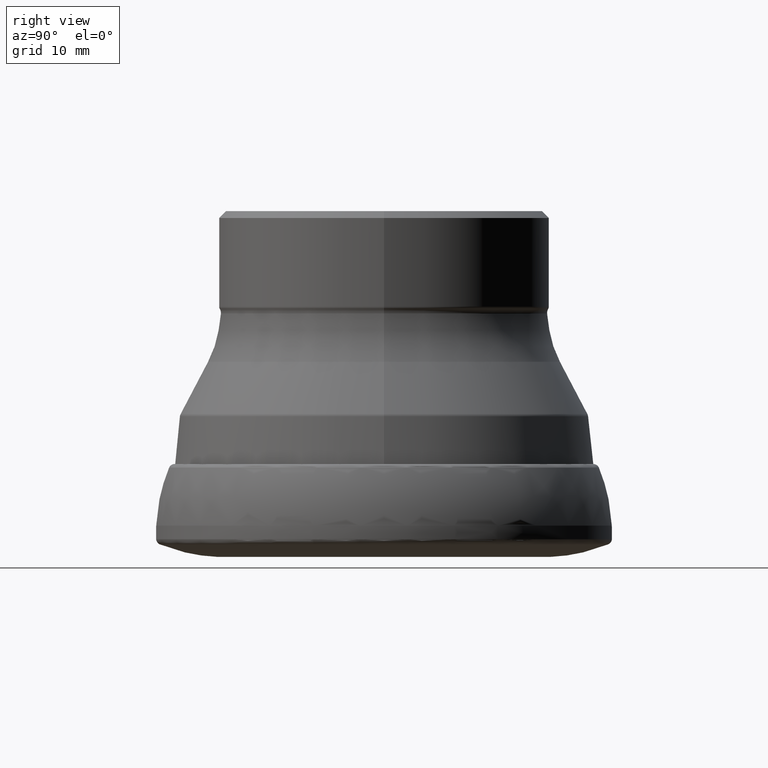
[diagram: clean part render]
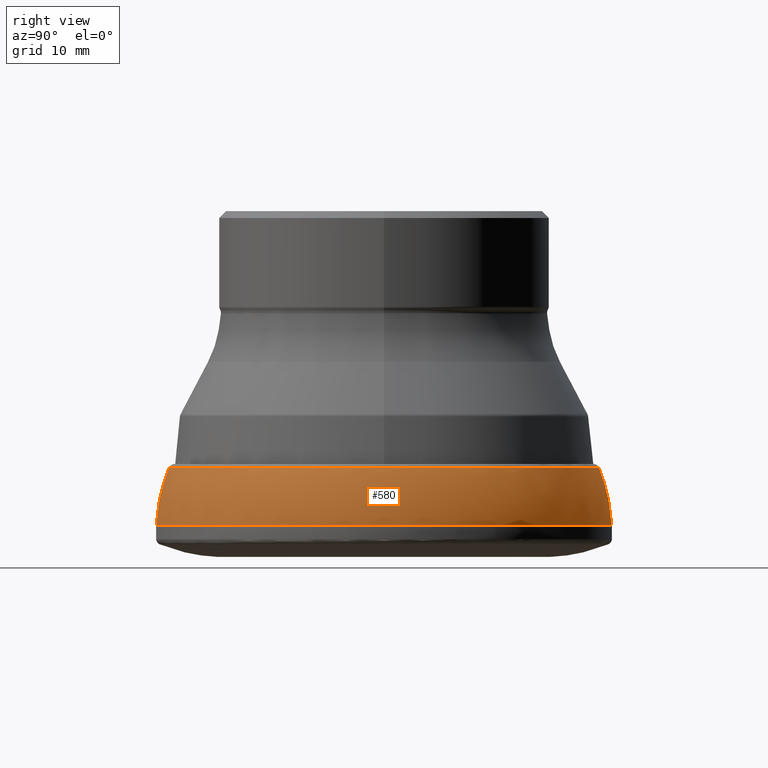
[diagram: same view with one face highlighted and labeled with its STEP entity id]
A machine part, right view. The second image highlights one B-rep face of the part: STEP entity #580.
In plain terms, the highlighted face is a freeform B-spline surface patch.
Its self-contained STEP definition (entity closure, byte-faithful):
#2 = CARTESIAN_POINT ( 'NONE',  ( 64.13808063992819100, 32.06904031996444400, -9.994887390593103000 ) ) ;
#60 = CARTESIAN_POINT ( 'NONE',  ( 63.23133594160331900, 31.61566797080201100, -11.46600991212113400 ) ) ;
#73 = CARTESIAN_POINT ( 'NONE',  ( 0.0000000000000000000, 5.658837121491545700E-016, -4.530690978079938700 ) ) ;
#93 = CARTESIAN_POINT ( 'NONE',  ( -1.452004714371952500E-014, 32.69623945292858700, -7.013094106679998800 ) ) ;
#105 = CARTESIAN_POINT ( 'NONE',  ( 0.0000000000000000000, 31.06900917613264900, -12.91075774162771100 ) ) ;
#165 = CARTESIAN_POINT ( 'NONE',  ( 1.457622643138636500E-014, -32.82274396242976900, -6.017474146927636300 ) ) ;
#170 = CARTESIAN_POINT ( 'NONE',  ( 1.424151477634259400E-014, -32.06904031996399600, -9.994887390593111900 ) ) ;
#183 = CARTESIAN_POINT ( 'NONE',  ( 65.23521819906319800, -32.61760909953135000, -7.511430064667046700 ) ) ;
#190 = CARTESIAN_POINT ( 'NONE',  ( 65.74116253026824100, 32.87058126513447600, -5.520835865264111000 ) ) ;
#195 = CARTESIAN_POINT ( 'NONE',  ( 1.462276884415158700E-014, -32.92754815882295100, -4.690880860172210700 ) ) ;
#213 = CARTESIAN_POINT ( 'NONE',  ( 1.440151516688532500E-014, -32.42932916957762800, -8.507481756901128700 ) ) ;
#221 = CARTESIAN_POINT ( 'NONE',  ( 1.461471617487847500E-014, -32.90941515965409500, -5.012548109519042500 ) ) ;
#331 = ORIENTED_EDGE ( 'NONE', *, *, #2935, .F. ) ;
#336 = CARTESIAN_POINT ( 'NONE',  ( -1.444562346083920000E-014, 32.52865221768494300, -8.009672158062164400 ) ) ;
#353 = CARTESIAN_POINT ( 'NONE',  ( 64.85865833915569600, -32.42932916957759900, -8.507481756901130500 ) ) ;
#380 = CARTESIAN_POINT ( 'NONE',  ( 64.39904340443595700, -32.19952170221773000, -9.500434531964527800 ) ) ;
#424 = CARTESIAN_POINT ( 'NONE',  ( 63.55408432700830400, -31.77704216350390400, -10.97801170486190600 ) ) ;
#436 = CARTESIAN_POINT ( 'NONE',  ( 65.81883031930839000, 32.90941515965455000, -5.012548109519034500 ) ) ;
#439 = CARTESIAN_POINT ( 'NONE',  ( 63.23133594160356100, -31.61566797080153500, -11.46600991212114300 ) ) ;
#452 = CARTESIAN_POINT ( 'NONE',  ( 64.39904340443573000, 32.19952170221820600, -9.500434531964518900 ) ) ;
#461 = CARTESIAN_POINT ( 'NONE',  ( -2.174186379914699000E-013, 31.13558643041600500, -12.74943832982830800 ) ) ;
#465 = CARTESIAN_POINT ( 'NONE',  ( 1.452004714371948700E-014, -32.69623945292852300, -7.013094106680361200 ) ) ;
#519 = CARTESIAN_POINT ( 'NONE',  ( 1.388458228612224500E-014, -31.26529980498754600, -12.42557784014740300 ) ) ;
#546 = CARTESIAN_POINT ( 'NONE',  ( -2.298052178043472000E-013, 32.90941515965409500, -5.012548109519034500 ) ) ;
#566 = CARTESIAN_POINT ( 'NONE',  ( -1.435279487295834800E-014, 32.31962082079020600, -9.004517220139872400 ) ) ;
#580 = ADVANCED_FACE ( 'NONE', ( #896 ), #2572, .F. ) ;
#600 = VERTEX_POINT ( 'NONE', #867 ) ;
#610 = CARTESIAN_POINT ( 'NONE',  ( 1.459747046134564800E-014, -32.87058126513401400, -5.520835865264119000 ) ) ;
#633 = CARTESIAN_POINT ( 'NONE',  ( 65.52914989117381600, 32.76457494558725600, -6.514997885468356600 ) ) ;
#636 = CARTESIAN_POINT ( 'NONE',  ( 1.448512825220910500E-014, -32.61760909953137900, -7.511430064667046700 ) ) ;
#638 = CARTESIAN_POINT ( 'NONE',  ( 1.457622643138636500E-014, -32.82274396242976900, -6.017474146927636300 ) ) ;
#641 = CARTESIAN_POINT ( 'NONE',  ( -2.207710294702284400E-013, 31.61566797080156400, -11.46600991212113400 ) ) ;
#681 = CARTESIAN_POINT ( 'NONE',  ( 65.64548792485975100, 32.82274396243023100, -6.017474146927627400 ) ) ;
#688 = CARTESIAN_POINT ( 'NONE',  ( 0.0000000000000000000, -32.93503732902213700, -4.530690978079942300 ) ) ;
#699 = CARTESIAN_POINT ( 'NONE',  ( 1.382697797610174700E-014, -31.13558643041600100, -12.74943832982831500 ) ) ;
#731 = CARTESIAN_POINT ( 'NONE',  ( 1.424151477634259400E-014, -32.06904031996399600, -9.994887390593111900 ) ) ;
#751 = ORIENTED_EDGE ( 'NONE', *, *, #2069, .F. ) ;
#766 = CARTESIAN_POINT ( 'NONE',  ( 65.85509631764635700, -32.92754815882292300, -4.690880860172209800 ) ) ;
#797 = CARTESIAN_POINT ( 'NONE',  ( -2.229534714165755400E-013, 31.92820607920661400, -10.48753101892197600 ) ) ;
#799 = CARTESIAN_POINT ( 'NONE',  ( -1.424151477634264800E-014, 32.06904031996409500, -9.994887390592671400 ) ) ;
#802 = DIRECTION ( 'NONE',  ( 0.0000000000000000000, 1.000000000000000000, 1.316776612887106200E-016 ) ) ;
#845 = CARTESIAN_POINT ( 'NONE',  ( 63.85641215841367600, -31.92820607920658600, -10.48753101892198600 ) ) ;
#852 = CARTESIAN_POINT ( 'NONE',  ( 62.53059960997552500, -31.26529980498751700, -12.42557784014740500 ) ) ;
#866 = VERTEX_POINT ( 'NONE', #2899 ) ;
#867 = CARTESIAN_POINT ( 'NONE',  ( 0.0000000000000000000, -32.93503732902213700, -4.530690978079942300 ) ) ;
#896 = FACE_OUTER_BOUND ( 'NONE', #1194, .T. ) ;
#923 = CARTESIAN_POINT ( 'NONE',  ( 1.462276884415158700E-014, -32.92754815882295100, -4.690880860172210700 ) ) ;
#934 = CARTESIAN_POINT ( 'NONE',  ( 1.448512825220910500E-014, -32.61760909953137900, -7.511430064667046700 ) ) ;
#1001 = CARTESIAN_POINT ( 'NONE',  ( -2.183244216448997300E-013, 31.26529980498754600, -12.42557784014739400 ) ) ;
#1028 = CARTESIAN_POINT ( 'NONE',  ( -1.411184154576261500E-014, 31.77704216350402100, -10.97801170486153000 ) ) ;
#1077 = CARTESIAN_POINT ( 'NONE',  ( 64.85865833915548300, 32.42932916957808200, -8.507481756901119900 ) ) ;
#1084 = CARTESIAN_POINT ( 'NONE',  ( 64.13808063992843200, -32.06904031996396800, -9.994887390593111900 ) ) ;
#1090 = CARTESIAN_POINT ( 'NONE',  ( 65.64548792486000700, -32.82274396242974000, -6.017474146927635400 ) ) ;
#1106 = CARTESIAN_POINT ( 'NONE',  ( 65.74116253026849700, -32.87058126513398500, -5.520835865264119000 ) ) ;
#1151 = CARTESIAN_POINT ( 'NONE',  ( 1.411184154576260900E-014, -31.77704216350393200, -10.97801170486190600 ) ) ;
#1155 = CARTESIAN_POINT ( 'NONE',  ( 63.55408432700807000, 31.77704216350437600, -10.97801170486189500 ) ) ;
#1159 = CARTESIAN_POINT ( 'NONE',  ( 1.440151516688532500E-014, -32.42932916957762800, -8.507481756901128700 ) ) ;
#1166 = CARTESIAN_POINT ( 'NONE',  ( 1.435279487295831100E-014, -32.31962082079012800, -9.004517220140339600 ) ) ;
#1168 = EDGE_CURVE ( 'NONE', #600, #1436, #2337, .T. ) ;
#1169 = CARTESIAN_POINT ( 'NONE',  ( 1.444562346083918700E-014, -32.52865221768487200, -8.009672158062604900 ) ) ;
#1177 = CARTESIAN_POINT ( 'NONE',  ( 1.382697797610174700E-014, -31.13558643041600100, -12.74943832982831500 ) ) ;
#1194 = EDGE_LOOP ( 'NONE', ( #751, #331, #1502, #1199 ) ) ;
#1199 = ORIENTED_EDGE ( 'NONE', *, *, #1168, .T. ) ;
#1226 = CARTESIAN_POINT ( 'NONE',  ( 64.63924164158046900, 32.31962082079058300, -9.004517220140330700 ) ) ;
#1259 = CARTESIAN_POINT ( 'NONE',  ( -2.169537315096262200E-013, 31.06900917613262400, -12.91075774162778200 ) ) ;
#1260 = CARTESIAN_POINT ( 'NONE',  ( -1.459747046134564200E-014, 32.87058126513404200, -5.520835865263941300 ) ) ;
#1271 = CARTESIAN_POINT ( 'NONE',  ( -1.396390385086546800E-014, 31.44391608969754900, -11.95108305033522100 ) ) ;
#1331 = CARTESIAN_POINT ( 'NONE',  ( 64.63924164158071100, -32.31962082079009900, -9.004517220140339600 ) ) ;
#1340 = CARTESIAN_POINT ( 'NONE',  ( 1.455039419865884200E-014, -32.76457494558680100, -6.514997885468364600 ) ) ;
#1403 = CARTESIAN_POINT ( 'NONE',  ( 1.455039419865884200E-014, -32.76457494558680100, -6.514997885468364600 ) ) ;
#1407 = CARTESIAN_POINT ( 'NONE',  ( 1.388458228612224500E-014, -31.26529980498754600, -12.42557784014740300 ) ) ;
#1413 = CARTESIAN_POINT ( 'NONE',  ( 65.23521819906295600, 32.61760909953183300, -7.511430064667038700 ) ) ;
#1417 = CARTESIAN_POINT ( 'NONE',  ( 1.404017700803520800E-014, -31.61566797080156400, -11.46600991212114100 ) ) ;
#1436 = VERTEX_POINT ( 'NONE', #1907 ) ;
#1477 = CARTESIAN_POINT ( 'NONE',  ( 65.81883031930864500, -32.90941515965406700, -5.012548109519042500 ) ) ;
#1484 = CARTESIAN_POINT ( 'NONE',  ( 65.85509631764610100, 32.92754815882340600, -4.690880860172202700 ) ) ;
#1502 = ORIENTED_EDGE ( 'NONE', *, *, #2141, .T. ) ;
#1505 = CARTESIAN_POINT ( 'NONE',  ( 1.417897180964483400E-014, -31.92820607920661400, -10.48753101892198500 ) ) ;
#1512 = CARTESIAN_POINT ( 'NONE',  ( -1.455039419865880400E-014, 32.76457494558685100, -6.514997885468055500 ) ) ;
#1517 = CARTESIAN_POINT ( 'NONE',  ( -2.287938039952872100E-013, 32.76457494558680100, -6.514997885468356600 ) ) ;
#1521 = CARTESIAN_POINT ( 'NONE',  ( -1.382697797610180100E-014, 31.13558643041605500, -12.74943832982817100 ) ) ;
#1550 = CARTESIAN_POINT ( 'NONE',  ( 62.88783217939533900, -31.44391608969743100, -11.95108305033546600 ) ) ;
#1597 = CARTESIAN_POINT ( 'NONE',  ( -2.256867059485494500E-013, 32.31962082079012800, -9.004517220140330700 ) ) ;
#1626 = CARTESIAN_POINT ( 'NONE',  ( 1.411184154576260900E-014, -31.77704216350393200, -10.97801170486190600 ) ) ;
#1645 = CARTESIAN_POINT ( 'NONE',  ( -2.218978994350108200E-013, 31.77704216350393200, -10.97801170486189700 ) ) ;
#1660 = CARTESIAN_POINT ( 'NONE',  ( 0.0000000000000000000, 32.93503732913985300, -4.530690977926354900 ) ) ;
#1732 = CARTESIAN_POINT ( 'NONE',  ( -1.448512825220911800E-014, 32.61760909953142800, -7.511430064666637200 ) ) ;
#1758 = CARTESIAN_POINT ( 'NONE',  ( 1.396390385086543800E-014, -31.44391608969746000, -11.95108305033546400 ) ) ;
#1763 = CARTESIAN_POINT ( 'NONE',  ( 62.88783217939511900, 31.44391608969789300, -11.95108305033545500 ) ) ;
#1783 = CARTESIAN_POINT ( 'NONE',  ( 0.0000000000000000000, 32.93503732913985300, -4.530690977926354900 ) ) ;
#1789 = CARTESIAN_POINT ( 'NONE',  ( 62.53059960997529000, 31.26529980498797900, -12.42557784014739400 ) ) ;
#1862 = CARTESIAN_POINT ( 'NONE',  ( 1.379741173585305200E-014, -31.06900917613262100, -12.91075774162778900 ) ) ;
#1889 = CARTESIAN_POINT ( 'NONE',  ( 62.13801835226567500, -31.06900917613259600, -12.91075774162778900 ) ) ;
#1907 = CARTESIAN_POINT ( 'NONE',  ( 0.0000000000000000000, -31.06900917612818700, -12.91075774162565400 ) ) ;
#1939 = CARTESIAN_POINT ( 'NONE',  ( 62.13801835226544800, 31.06900917613306100, -12.91075774162778000 ) ) ;
#1953 = CARTESIAN_POINT ( 'NONE',  ( -2.291999960688993400E-013, 32.82274396242976900, -6.017474146927628300 ) ) ;
#1956 = AXIS2_PLACEMENT_3D ( 'NONE', #3005, #2302, #2456 ) ;
#1968 = CARTESIAN_POINT ( 'NONE',  ( -2.239369116635246000E-013, 32.06904031996399600, -9.994887390593103000 ) ) ;
#1971 = CARTESIAN_POINT ( 'NONE',  ( -1.440151516688536300E-014, 32.42932916957771300, -8.507481756900674000 ) ) ;
#1990 = CARTESIAN_POINT ( 'NONE',  ( 65.05730443537018500, -32.52865221768484400, -8.009672158062604900 ) ) ;
#1993 = CARTESIAN_POINT ( 'NONE',  ( 65.39247890585726000, 32.69623945292897800, -7.013094106680352300 ) ) ;
#2056 = CARTESIAN_POINT ( 'NONE',  ( 62.27117286083220200, 31.13558643041643800, -12.74943832982830800 ) ) ;
#2069 = EDGE_CURVE ( 'NONE', #866, #1436, #2553, .T. ) ;
#2079 = AXIS2_PLACEMENT_3D ( 'NONE', #73, #2961, #802 ) ;
#2082 = CARTESIAN_POINT ( 'NONE',  ( 1.429946015028782800E-014, -32.19952170221776600, -9.500434531964527800 ) ) ;
#2104 = CARTESIAN_POINT ( 'NONE',  ( 1.429946015028782800E-014, -32.19952170221776600, -9.500434531964527800 ) ) ;
#2141 = EDGE_CURVE ( 'NONE', #2419, #600, #3025, .T. ) ;
#2198 = CARTESIAN_POINT ( 'NONE',  ( -1.462276884415158100E-014, 32.92754815882293000, -4.690880860172137000 ) ) ;
#2202 = CARTESIAN_POINT ( 'NONE',  ( 65.39247890585748700, -32.69623945292849500, -7.013094106680360300 ) ) ;
#2206 = CARTESIAN_POINT ( 'NONE',  ( -1.429946015028788400E-014, 32.19952170221788600, -9.500434531964078400 ) ) ;
#2277 = CARTESIAN_POINT ( 'NONE',  ( 1.396390385086543800E-014, -31.44391608969746000, -11.95108305033546400 ) ) ;
#2302 = DIRECTION ( 'NONE',  ( -0.0000000000000000000, 1.249000902703301100E-016, -1.000000000000000000 ) ) ;
#2337 = B_SPLINE_CURVE_WITH_KNOTS ( 'NONE', 3,
 ( #688, #923, #221, #2970, #638, #1340, #465, #934, #1169, #1159, #2542, #2104, #170, #2740, #1626, #1417, #2277, #1407, #699, #2749 ),
 .UNSPECIFIED., .F., .F.,
 ( 4, 1, 1, 1, 1, 1, 1, 1, 1, 1, 1, 1, 1, 1, 1, 1, 1, 4 ),
 ( 0.0000000000000000000, 0.05733658179668144100, 0.1149261439219528800, 0.1727563028877596700, 0.2308143411380002600, 0.2890872194624448700, 0.3475615904157807200, 0.4062238127168627000, 0.4650599665976591400, 0.5240558700658696200, 0.5831970960397643300, 0.6424689903084812600, 0.7018566902659573200, 0.7613451443617809100, 0.8209191322077147300, 0.8805632852743843200, 0.9402621081088122800, 1.000000000000000000 ),
 .UNSPECIFIED. ) ;
#2404 = CARTESIAN_POINT ( 'NONE',  ( 65.05730443536995700, 32.52865221768532700, -8.009672158062597800 ) ) ;
#2419 = VERTEX_POINT ( 'NONE', #1783 ) ;
#2420 = CARTESIAN_POINT ( 'NONE',  ( -2.295340421682842500E-013, 32.87058126513401400, -5.520835865264111000 ) ) ;
#2445 = CARTESIAN_POINT ( 'NONE',  ( -1.417897180964486600E-014, 31.92820607920672400, -10.48753101892157600 ) ) ;
#2456 = DIRECTION ( 'NONE',  ( 0.0000000000000000000, 1.000000000000000000, 1.116690568497226700E-016 ) ) ;
#2495 = CARTESIAN_POINT ( 'NONE',  ( 65.87007465804447300, 32.93503732902259200, -4.530690978079934300 ) ) ;
#2504 = CARTESIAN_POINT ( 'NONE',  ( -2.299318398607778200E-013, 32.92754815882295100, -4.690880860172202700 ) ) ;
#2508 = CARTESIAN_POINT ( 'NONE',  ( 62.27117286083243600, -31.13558643041597000, -12.74943832982831700 ) ) ;
#2537 = CARTESIAN_POINT ( 'NONE',  ( -2.195716924946560700E-013, 31.44391608969746000, -11.95108305033545500 ) ) ;
#2542 = CARTESIAN_POINT ( 'NONE',  ( 1.435279487295831100E-014, -32.31962082079012800, -9.004517220140339600 ) ) ;
#2553 = CIRCLE ( 'NONE', #1956, 31.06900917612819100 ) ;
#2570 = CARTESIAN_POINT ( 'NONE',  ( 63.85641215841342000, 31.92820607920706200, -10.48753101892197600 ) ) ;
#2572 =( BOUNDED_SURFACE ( )  B_SPLINE_SURFACE ( 3, 3, ( 
 ( #2742, #2495, #3024, #2960 ),
 ( #2504, #1484, #766, #195 ),
 ( #546, #436, #1477, #2967 ),
 ( #2420, #190, #1106, #610 ),
 ( #1953, #681, #1090, #165 ),
 ( #1517, #633, #2869, #1403 ),
 ( #2615, #1993, #2202, #2876 ),
 ( #2944, #1413, #183, #636 ),
 ( #2618, #2404, #1990, #2936 ),
 ( #2737, #1077, #353, #213 ),
 ( #1597, #1226, #1331, #1166 ),
 ( #2608, #452, #380, #2082 ),
 ( #1968, #2, #1084, #731 ),
 ( #797, #2570, #845, #1505 ),
 ( #1645, #1155, #424, #1151 ),
 ( #641, #60, #439, #2987 ),
 ( #2537, #1763, #1550, #1758 ),
 ( #1001, #1789, #852, #519 ),
 ( #461, #2056, #2508, #1177 ),
 ( #1259, #1939, #1889, #1862 ) ),
 .UNSPECIFIED., .F., .F., .F. ) 
 B_SPLINE_SURFACE_WITH_KNOTS ( ( 4, 1, 1, 1, 1, 1, 1, 1, 1, 1, 1, 1, 1, 1, 1, 1, 1, 4 ),
 ( 4, 4 ),
 ( 0.0000000000000000000, 0.05733658179668144100, 0.1149261439219528800, 0.1727563028877596700, 0.2308143411380002600, 0.2890872194624448700, 0.3475615904157807200, 0.4062238127168627000, 0.4650599665976591400, 0.5240558700658696200, 0.5831970960397643300, 0.6424689903084812600, 0.7018566902659573200, 0.7613451443617809100, 0.8209191322077147300, 0.8805632852743843200, 0.9402621081088122800, 1.000000000000000000 ),
 ( 0.0000000000000000000, 1.000000000000000000 ),
 .UNSPECIFIED. ) 
 GEOMETRIC_REPRESENTATION_ITEM ( )  RATIONAL_B_SPLINE_SURFACE ( (
 ( 1.000000000000000000, 0.3333333333333311500, 0.3333333333333311500, 1.000000000000000000),
 ( 1.000000000000000000, 0.3333333333333311500, 0.3333333333333311500, 1.000000000000000000),
 ( 1.000000000000000000, 0.3333333333333311500, 0.3333333333333311500, 1.000000000000000000),
 ( 1.000000000000000000, 0.3333333333333311500, 0.3333333333333311500, 1.000000000000000000),
 ( 1.000000000000000000, 0.3333333333333311500, 0.3333333333333311500, 1.000000000000000000),
 ( 1.000000000000000000, 0.3333333333333311500, 0.3333333333333311500, 1.000000000000000000),
 ( 1.000000000000000000, 0.3333333333333311500, 0.3333333333333311500, 1.000000000000000000),
 ( 1.000000000000000000, 0.3333333333333311500, 0.3333333333333311500, 1.000000000000000000),
 ( 1.000000000000000000, 0.3333333333333311500, 0.3333333333333311500, 1.000000000000000000),
 ( 1.000000000000000000, 0.3333333333333311500, 0.3333333333333311500, 1.000000000000000000),
 ( 1.000000000000000000, 0.3333333333333311500, 0.3333333333333311500, 1.000000000000000000),
 ( 1.000000000000000000, 0.3333333333333311500, 0.3333333333333311500, 1.000000000000000000),
 ( 1.000000000000000000, 0.3333333333333311500, 0.3333333333333311500, 1.000000000000000000),
 ( 1.000000000000000000, 0.3333333333333311500, 0.3333333333333311500, 1.000000000000000000),
 ( 1.000000000000000000, 0.3333333333333311500, 0.3333333333333311500, 1.000000000000000000),
 ( 1.000000000000000000, 0.3333333333333311500, 0.3333333333333311500, 1.000000000000000000),
 ( 1.000000000000000000, 0.3333333333333311500, 0.3333333333333311500, 1.000000000000000000),
 ( 1.000000000000000000, 0.3333333333333311500, 0.3333333333333311500, 1.000000000000000000),
 ( 1.000000000000000000, 0.3333333333333311500, 0.3333333333333311500, 1.000000000000000000),
 ( 1.000000000000000000, 0.3333333333333311500, 0.3333333333333311500, 1.000000000000000000) ) ) 
 REPRESENTATION_ITEM ( '' )  SURFACE ( )  );
#2608 = CARTESIAN_POINT ( 'NONE',  ( -2.248480582859356000E-013, 32.19952170221776600, -9.500434531964518900 ) ) ;
#2615 = CARTESIAN_POINT ( 'NONE',  ( -2.283166198004931200E-013, 32.69623945292852300, -7.013094106680353200 ) ) ;
#2618 = CARTESIAN_POINT ( 'NONE',  ( -2.271463643915301200E-013, 32.52865221768487200, -8.009672158062596000 ) ) ;
#2671 = CARTESIAN_POINT ( 'NONE',  ( -1.461471617487846900E-014, 32.90941515965408100, -5.012548109518853300 ) ) ;
#2682 = CARTESIAN_POINT ( 'NONE',  ( -1.404017700803524000E-014, 31.61566797080167400, -11.46600991212083900 ) ) ;
#2737 = CARTESIAN_POINT ( 'NONE',  ( -2.264527952535631600E-013, 32.42932916957762800, -8.507481756901119900 ) ) ;
#2740 = CARTESIAN_POINT ( 'NONE',  ( 1.417897180964483400E-014, -31.92820607920661400, -10.48753101892198500 ) ) ;
#2742 = CARTESIAN_POINT ( 'NONE',  ( -2.299841364567655700E-013, 32.93503732902213700, -4.530690978079934300 ) ) ;
#2749 = CARTESIAN_POINT ( 'NONE',  ( 0.0000000000000000000, -31.06900917612818700, -12.91075774162565400 ) ) ;
#2862 = B_SPLINE_CURVE_WITH_KNOTS ( 'NONE', 3,
 ( #1660, #2198, #2671, #1260, #2902, #1512, #93, #1732, #336, #1971, #566, #2206, #799, #2445, #1028, #2682, #1271, #2912, #1521, #105 ),
 .UNSPECIFIED., .F., .F.,
 ( 4, 1, 1, 1, 1, 1, 1, 1, 1, 1, 1, 1, 1, 1, 1, 1, 1, 4 ),
 ( 0.0000000000000000000, 0.05733658179667067100, 0.1149261439219332300, 0.1727563028877325800, 0.2308143411379665100, 0.2890872194624056800, 0.3475615904157358700, 0.4062238127168152900, 0.4650599665976094000, 0.5240558700658206600, 0.5831970960397152600, 0.6424689903084351800, 0.7018566902659143500, 0.7613451443617439400, 0.8209191322076840900, 0.8805632852743630100, 0.9402621081088000700, 1.000000000000000000 ),
 .UNSPECIFIED. ) ;
#2869 = CARTESIAN_POINT ( 'NONE',  ( 65.52914989117404300, -32.76457494558677300, -6.514997885468364600 ) ) ;
#2876 = CARTESIAN_POINT ( 'NONE',  ( 1.452004714371948700E-014, -32.69623945292852300, -7.013094106680361200 ) ) ;
#2899 = CARTESIAN_POINT ( 'NONE',  ( 0.0000000000000000000, 31.06900917613264900, -12.91075774162771100 ) ) ;
#2902 = CARTESIAN_POINT ( 'NONE',  ( -1.457622643138635200E-014, 32.82274396242978300, -6.017474146927382300 ) ) ;
#2912 = CARTESIAN_POINT ( 'NONE',  ( -1.388458228612227500E-014, 31.26529980498764200, -12.42557784014714200 ) ) ;
#2935 = EDGE_CURVE ( 'NONE', #2419, #866, #2862, .T. ) ;
#2936 = CARTESIAN_POINT ( 'NONE',  ( 1.444562346083918700E-014, -32.52865221768487200, -8.009672158062604900 ) ) ;
#2944 = CARTESIAN_POINT ( 'NONE',  ( -2.277675469773875300E-013, 32.61760909953137900, -7.511430064667038700 ) ) ;
#2960 = CARTESIAN_POINT ( 'NONE',  ( 1.462609470382776400E-014, -32.93503732902213700, -4.530690978079942300 ) ) ;
#2961 = DIRECTION ( 'NONE',  ( -0.0000000000000000000, 1.249000902703301100E-016, -1.000000000000000000 ) ) ;
#2967 = CARTESIAN_POINT ( 'NONE',  ( 1.461471617487847500E-014, -32.90941515965409500, -5.012548109519042500 ) ) ;
#2970 = CARTESIAN_POINT ( 'NONE',  ( 1.459747046134564800E-014, -32.87058126513401400, -5.520835865264119000 ) ) ;
#2987 = CARTESIAN_POINT ( 'NONE',  ( 1.404017700803520800E-014, -31.61566797080156400, -11.46600991212114100 ) ) ;
#3005 = CARTESIAN_POINT ( 'NONE',  ( 0.0000000000000000000, 1.612554807387406900E-015, -12.91075774162565000 ) ) ;
#3024 = CARTESIAN_POINT ( 'NONE',  ( 65.87007465804472900, -32.93503732902210900, -4.530690978079942300 ) ) ;
#3025 = CIRCLE ( 'NONE', #2079, 32.93503732902213700 ) ;